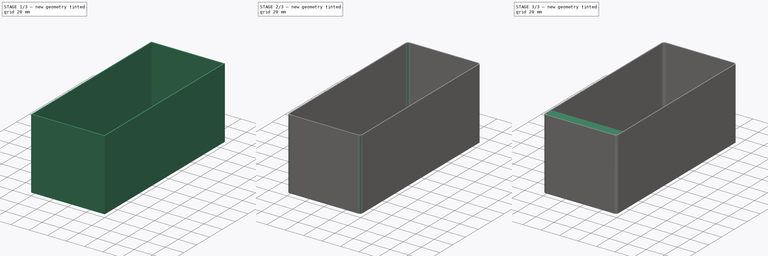
[diagram: build sequence overview — one tinted view per stage of 3, left to right]
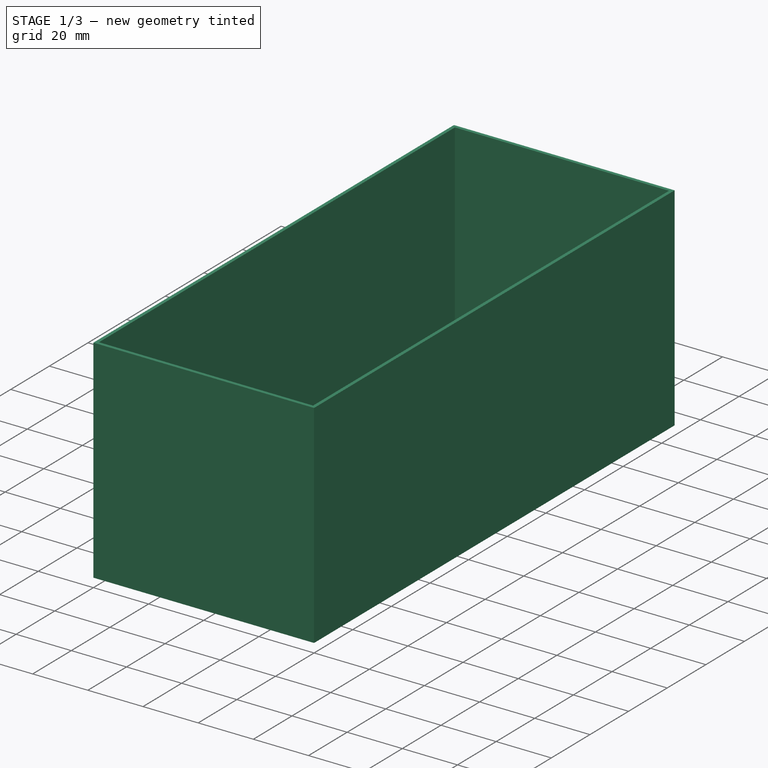
[diagram: stage 1 of 3 — iso view after this stage's code; geometry added in this stage tinted green]
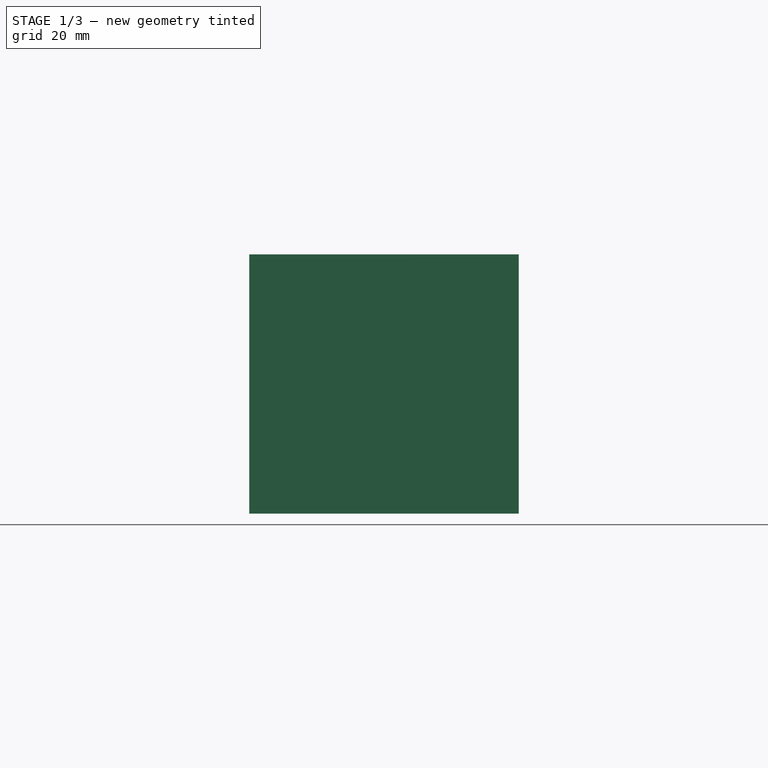
[diagram: stage 1 of 3 — front view after this stage's code; geometry added in this stage tinted green]
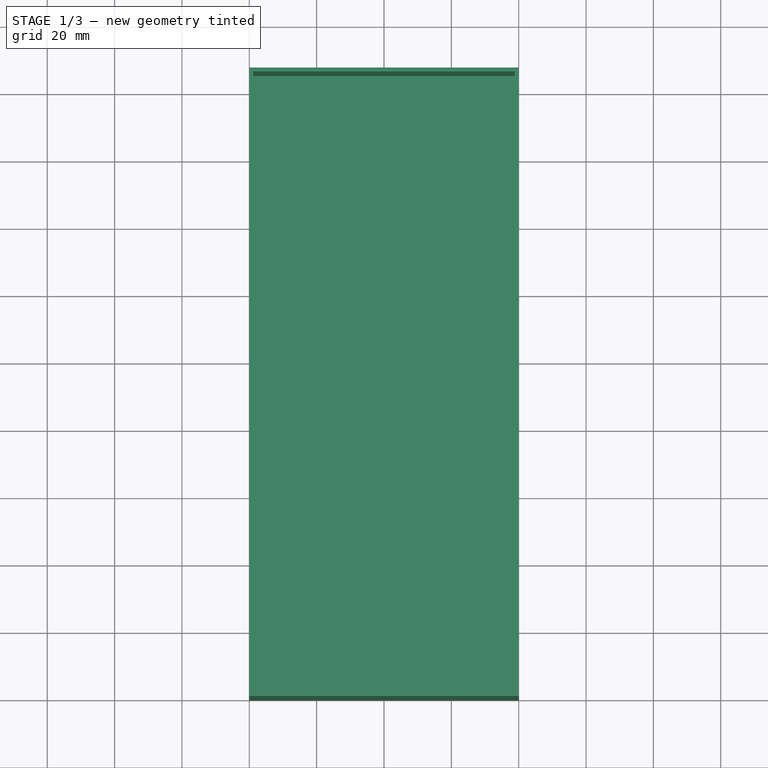
[diagram: stage 1 of 3 — top view after this stage's code; geometry added in this stage tinted green]
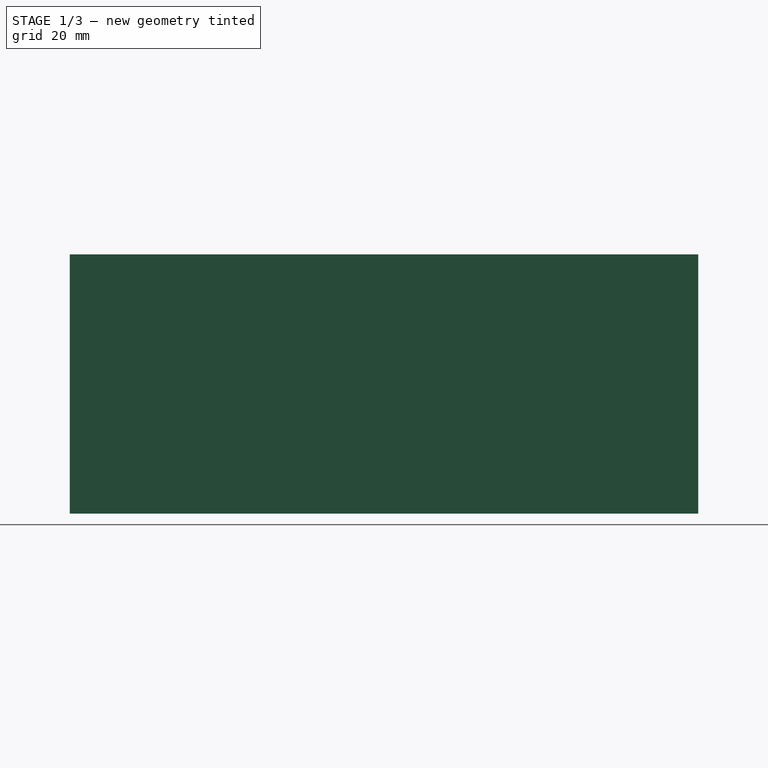
[diagram: stage 1 of 3 — right view after this stage's code; geometry added in this stage tinted green]
FCSTD DOCUMENT  (FreeCAD 0.18R16131 (Git))
Label: Box12System
License: CreativeCommons Attribution-NonCommercial-NoDerivatives
LicenseURL: http://creativecommons.org/licenses/by-nc-nd/4.0/
objects: Sketcher::SketchObject×2, PartDesign::Pad×2, PartDesign::Fillet×2, Spreadsheet::Sheet×1, PartDesign::Thickness×1, PartDesign::Plane×1, PartDesign::Body×1
note: 11 computed .brp shape members not serialized (recipe doc carries the construction recipe); baked Part::Feature solids carry a one-line shape summary decoded from their .brp

FEATURE [Spreadsheet::Sheet] Spreadsheet
  cells = A1=DrawerWidth; B1(DrawerWidth)==320mm; A2=BoxUnit; B2(BoxUnit)==B1 / 12; A3=Columns; B3(Columns)=3; A4=Rows; B4(Rows)=7; A5=Height; B5(Height)=77; A6=Thickness; B6(Thickness)==1.2mm; A7=CornerRadius; B7(CornerRadius)=3; A8=LabelDepth; B8(LabelDepth)=10
FEATURE [Sketcher::SketchObject] Sketch
  MapMode = 5
  Support = -> [XY_Plane]
  expr: Constraints[10] = Spreadsheet.BoxUnit * Spreadsheet.Rows
  expr: Constraints[9] = Spreadsheet.BoxUnit * Spreadsheet.Columns
  sketch-geometry (4):
    g0: LineSegment StartX=0 StartY=0 StartZ=0 EndX=80 EndY=0 EndZ=0
    g1: LineSegment StartX=80 StartY=0 StartZ=0 EndX=80 EndY=186.667 EndZ=0
    g2: LineSegment StartX=80 StartY=186.667 StartZ=0 EndX=0 EndY=186.667 EndZ=0
    g3: LineSegment StartX=0 StartY=186.667 StartZ=0 EndX=0 EndY=0 EndZ=0
  constraints (11):
    c: Coincident(g0,g1)
    c: Coincident(g1,g2)
    c: Coincident(g2,g3)
    c: Coincident(g3,g0)
    c: Horizontal(g0)
    c: Horizontal(g2)
    c: Vertical(g1)
    c: Vertical(g3)
    c: Coincident(g0,g-1)
    c: DistanceX(g2,g2) = 80
    c: DistanceY(g3,g3) = 186.667
FEATURE [PartDesign::Pad] Pad
  Length = 77
  Length2 = 100
  Profile = -> Sketch
  Type = 0
  expr: Length = Spreadsheet.Height
FEATURE [PartDesign::Thickness] Thickness
  Base = -> Pad [Face6]
  BaseFeature = -> Pad
  Join = 0
  Mode = 0
  Reversed = true
  Value = 1.2
  expr: Value = Spreadsheet.Thickness
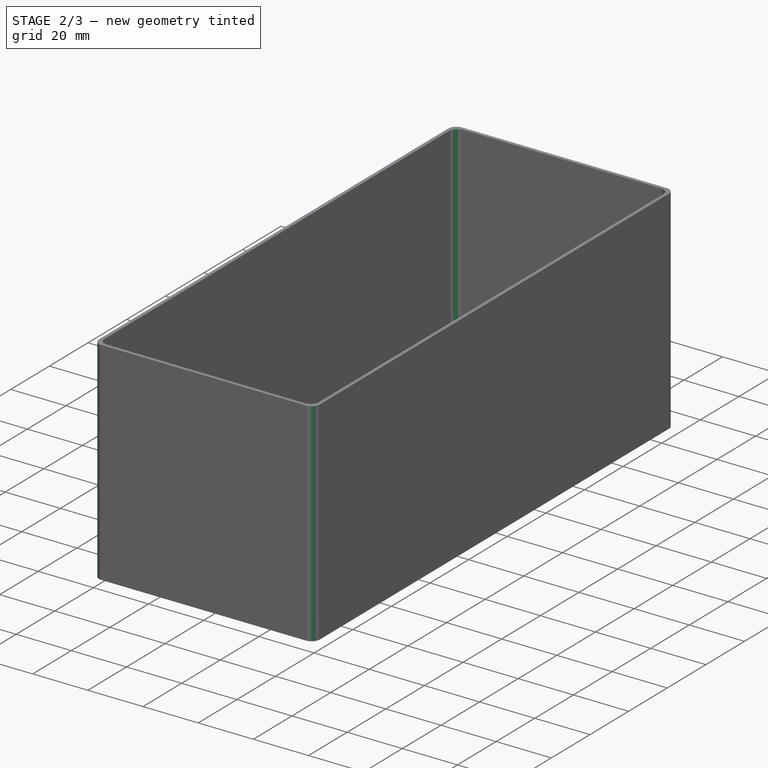
[diagram: stage 2 of 3 — iso view after this stage's code; geometry added in this stage tinted green]
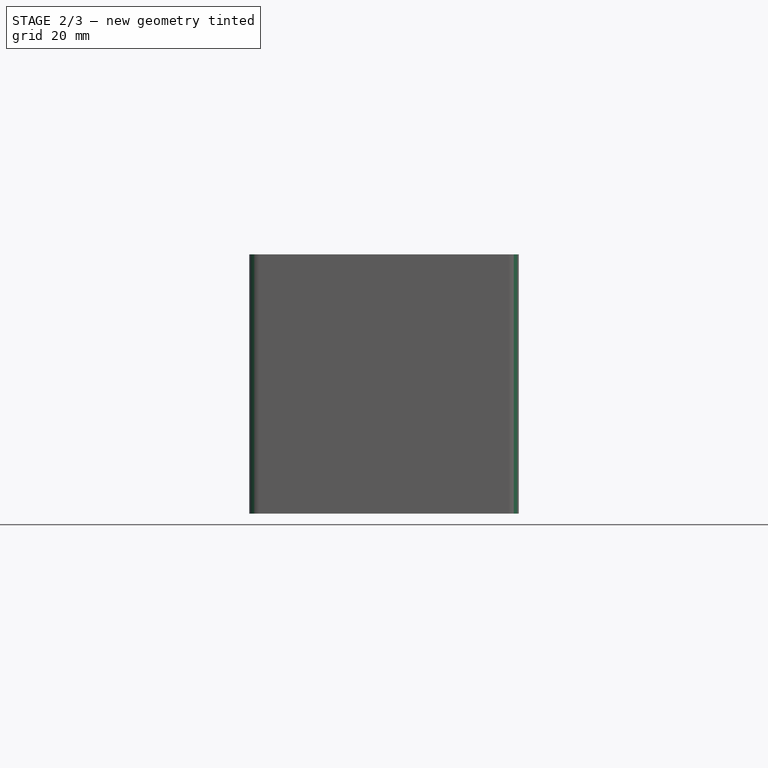
[diagram: stage 2 of 3 — front view after this stage's code; geometry added in this stage tinted green]
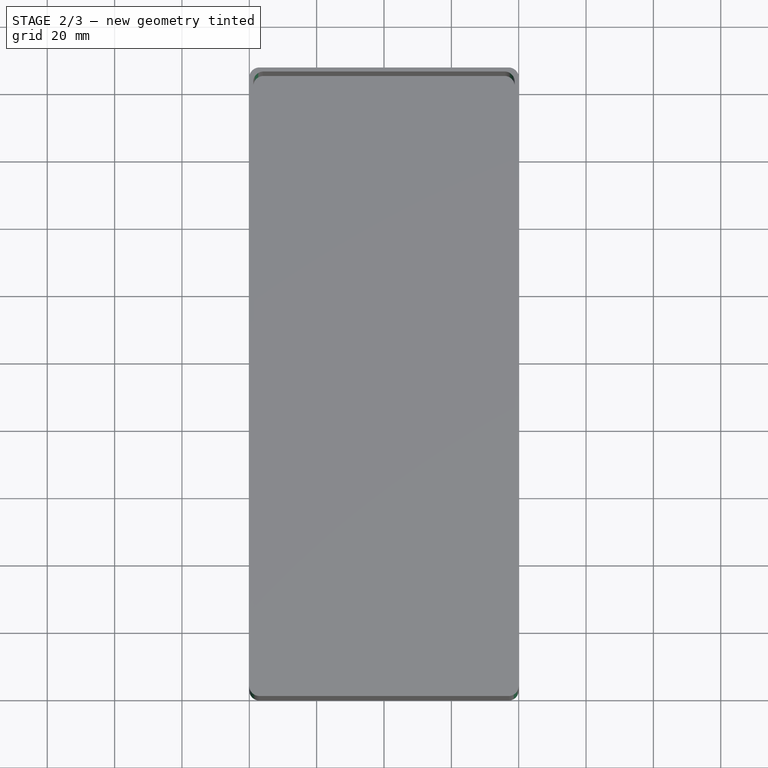
[diagram: stage 2 of 3 — top view after this stage's code; geometry added in this stage tinted green]
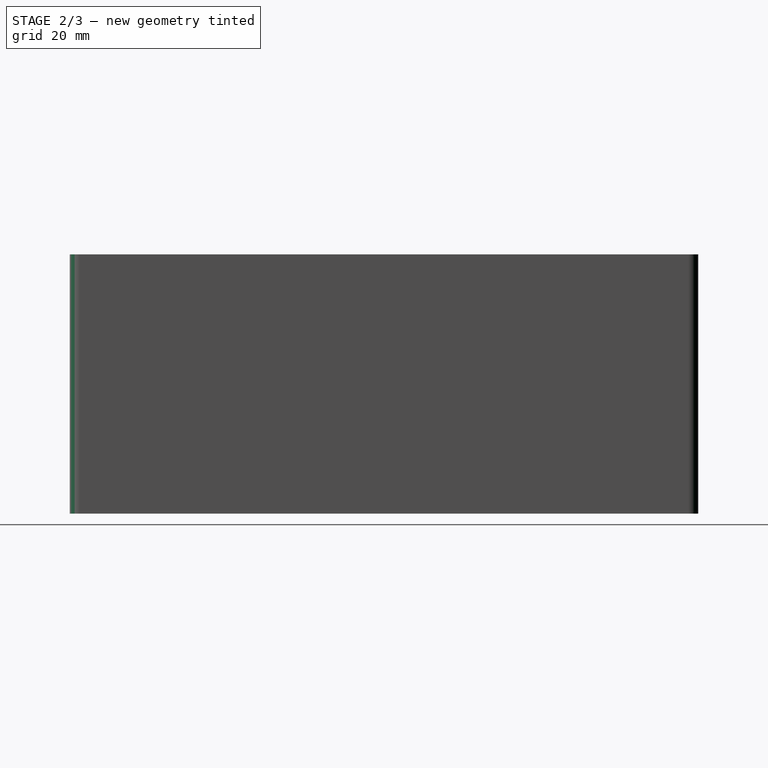
[diagram: stage 2 of 3 — right view after this stage's code; geometry added in this stage tinted green]
FEATURE [PartDesign::Fillet] Fillet
  Base = -> Thickness [Edge2,Edge5,Edge1,Edge22,Edge17,Edge19,Edge8,Edge20]
  BaseFeature = -> Thickness
  Radius = 3
  expr: Radius = Spreadsheet.CornerRadius
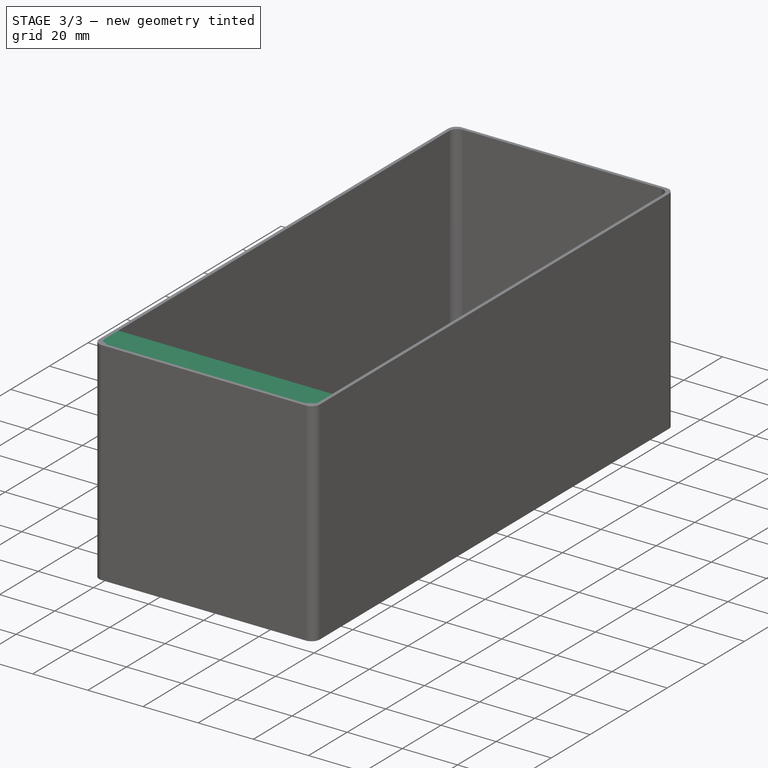
[diagram: stage 3 of 3 — iso view after this stage's code; geometry added in this stage tinted green]
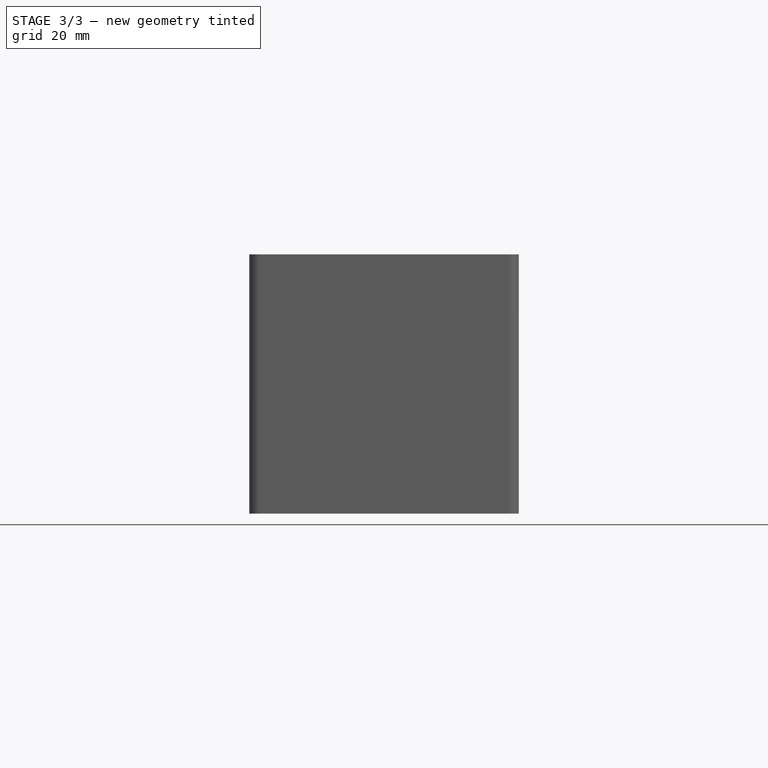
[diagram: stage 3 of 3 — front view after this stage's code; geometry added in this stage tinted green]
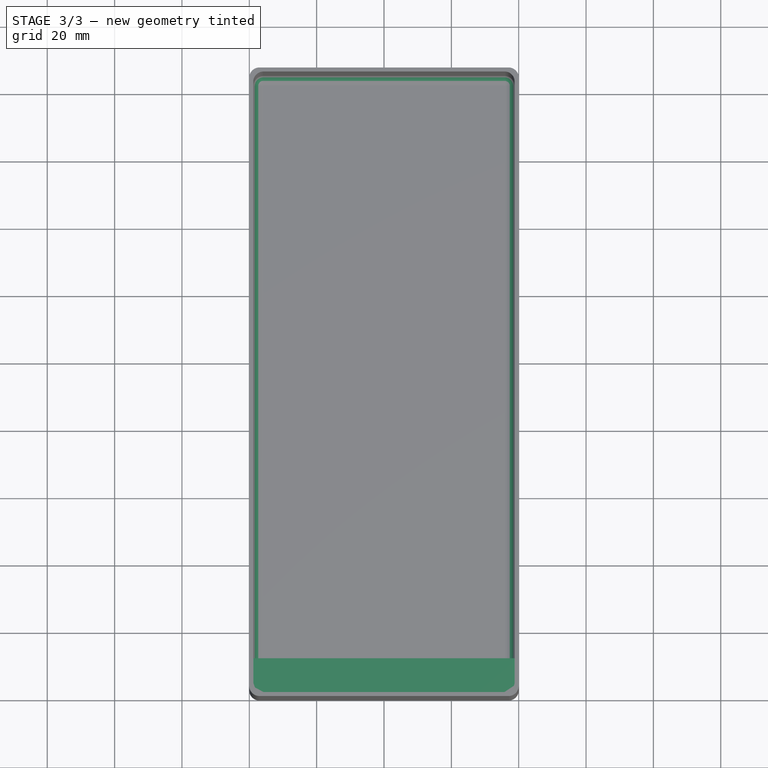
[diagram: stage 3 of 3 — top view after this stage's code; geometry added in this stage tinted green]
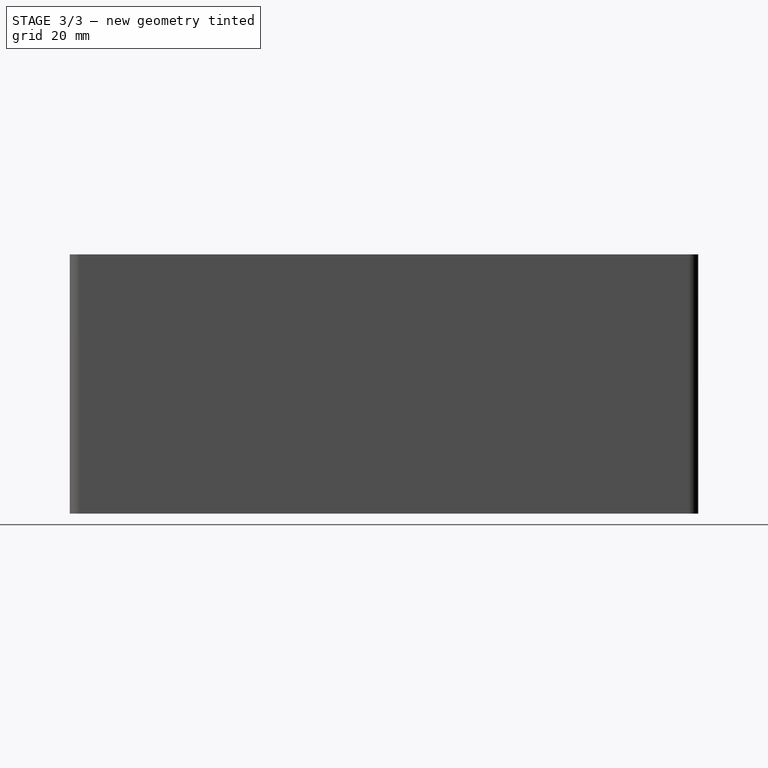
[diagram: stage 3 of 3 — right view after this stage's code; geometry added in this stage tinted green]
FEATURE [PartDesign::Plane] DatumPlane
  AttachmentOffset = pos=(-40,0,0) rot=(0,1,0;1.5708rad)
  Length = 222.828
  MapMode = 5
  Placement = pos=(40,1.2,0) rot=(-0.57735,0.57735,0.57735;4.18879rad)
  ResizeMode = 0
  Support = -> [Fillet]
  Width = 113.161
  expr: AttachmentOffset.Base.x = Spreadsheet.BoxUnit / 2 * Spreadsheet.Columns * -1
FEATURE [Sketcher::SketchObject] Sketch001
  ExternalGeometry = -> [Fillet]
  MapMode = 5
  Placement = pos=(40,1.2,0) rot=(-0.57735,0.57735,0.57735;4.18879rad)
  Support = -> [DatumPlane]
  expr: Constraints[5] = Spreadsheet.LabelDepth
  expr: Constraints[4] = Spreadsheet.LabelDepth
  sketch-geometry (3):
    g0: LineSegment StartX=1.78e-14 StartY=77 StartZ=0 EndX=-10 EndY=77 EndZ=0
    g1: LineSegment StartX=1.78e-14 StartY=77 StartZ=0 EndX=1.78e-14 EndY=67 EndZ=0
    g2: LineSegment StartX=-10 StartY=77 StartZ=0 EndX=1.78e-14 EndY=67 EndZ=0
  constraints (8):
    c: Coincident(g0,g-3)
    c: Horizontal(g0)
    c: Coincident(g1,g0)
    c: Vertical(g1)
    c: DistanceX(g0,g0) = 10
    c: DistanceY(g1,g1) = 10
    c: Coincident(g2,g0)
    c: Coincident(g2,g1)
FEATURE [PartDesign::Pad] Pad001
  BaseFeature = -> Fillet
  Length = 38.8
  Length2 = 38.8
  Profile = -> Sketch001
  Type = 4
  expr: Length2 = Spreadsheet.BoxUnit * Spreadsheet.Columns / 2 - Spreadsheet.Thickness
  expr: Length = Spreadsheet.BoxUnit * Spreadsheet.Columns / 2 - Spreadsheet.Thickness
FEATURE [PartDesign::Fillet] Fillet001
  Base = -> Pad001 [Edge42,Edge57,Edge58,Edge59,Edge50,Edge47,Edge44,Edge48]
  BaseFeature = -> Pad001
  Radius = 3
  expr: Radius = Spreadsheet.CornerRadius
FEATURE [PartDesign::Body] Body  label="Box"
  Group = -> [Sketch,Pad,Thickness,Fillet,DatumPlane,Sketch001,Pad001,Fillet001]
  Origin = -> Origin
  Tip = -> Fillet001
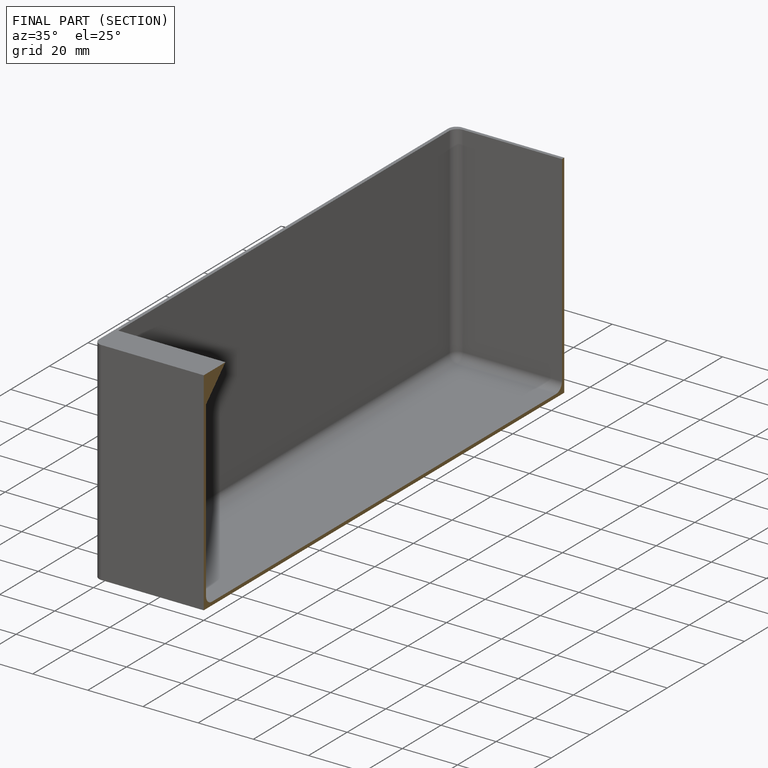
[diagram: finished part — half-section view (interior)]
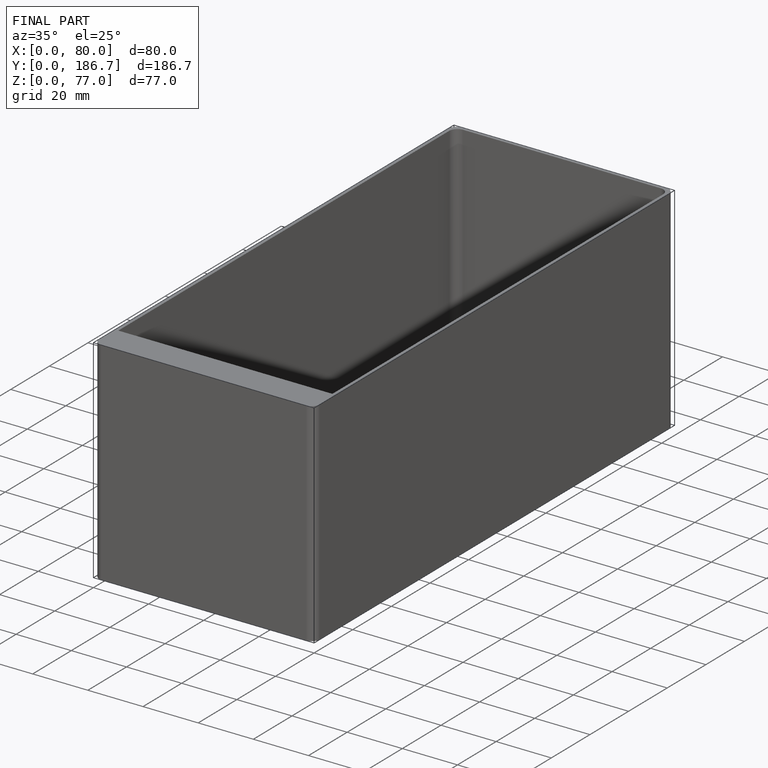
[diagram: finished part — iso view with bounding-box wireframe]
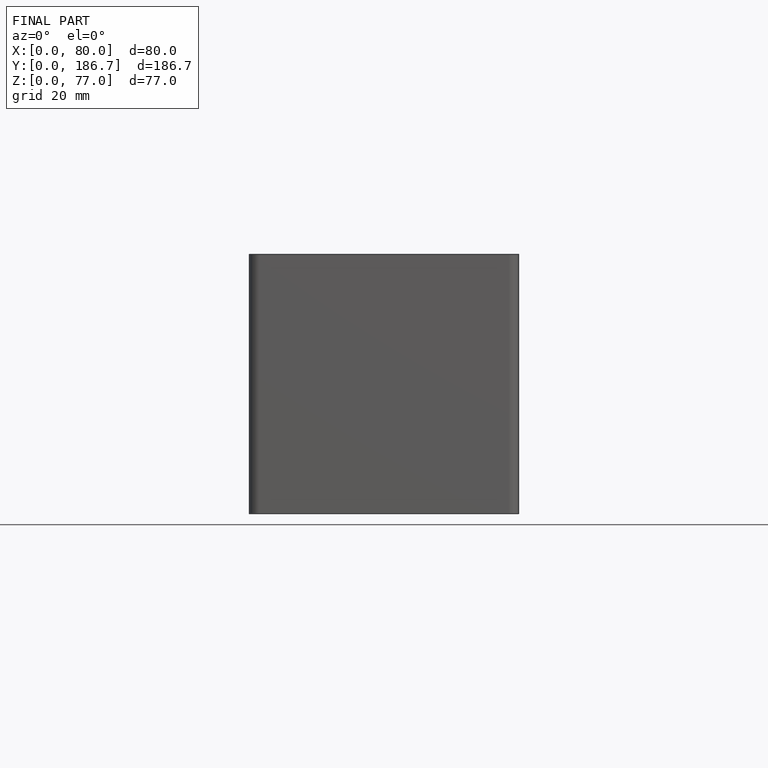
[diagram: finished part — front view with bounding-box wireframe]
